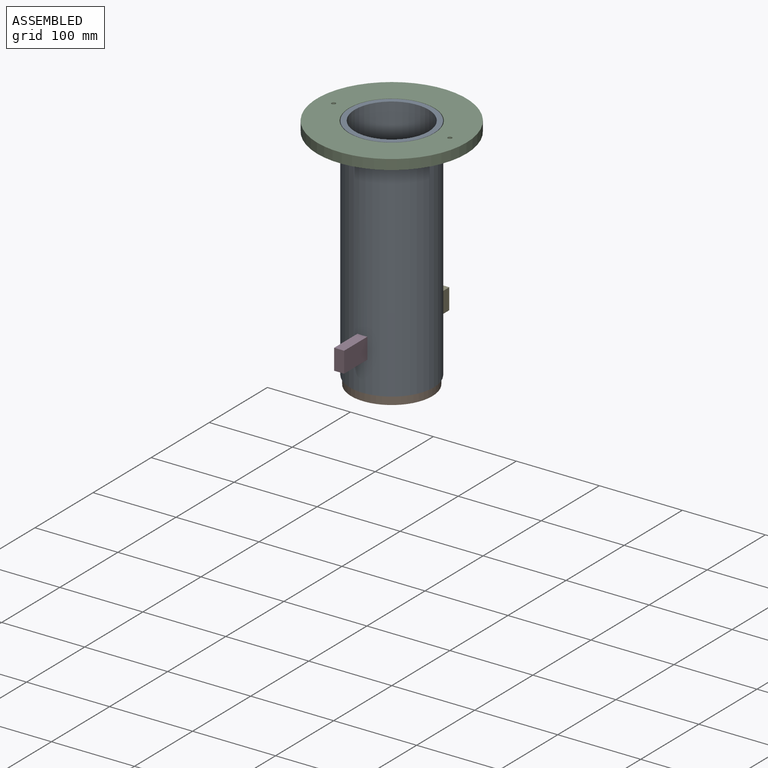
[diagram: assembled view]
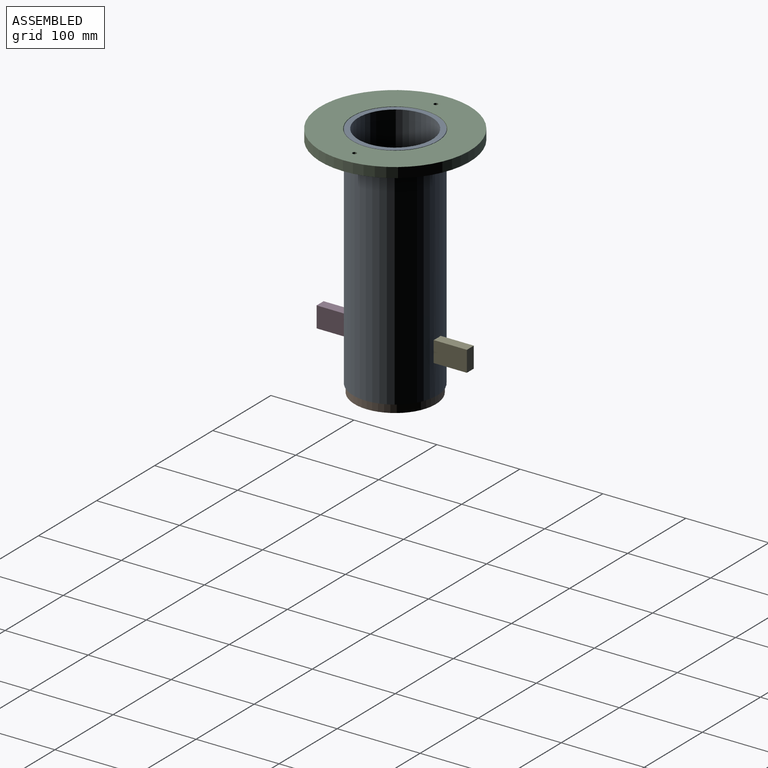
[diagram: assembled view, second angle]
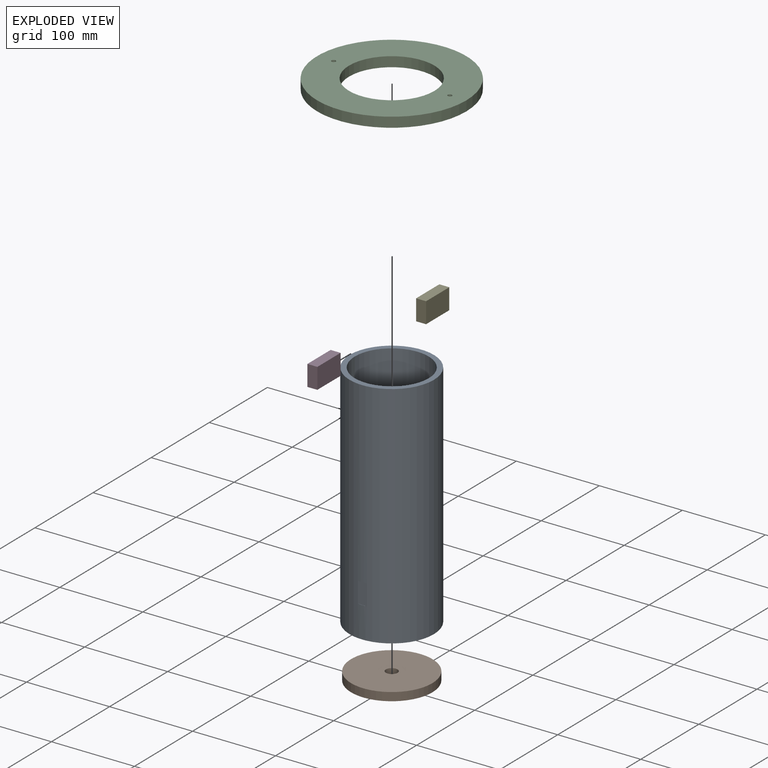
[diagram: exploded view]
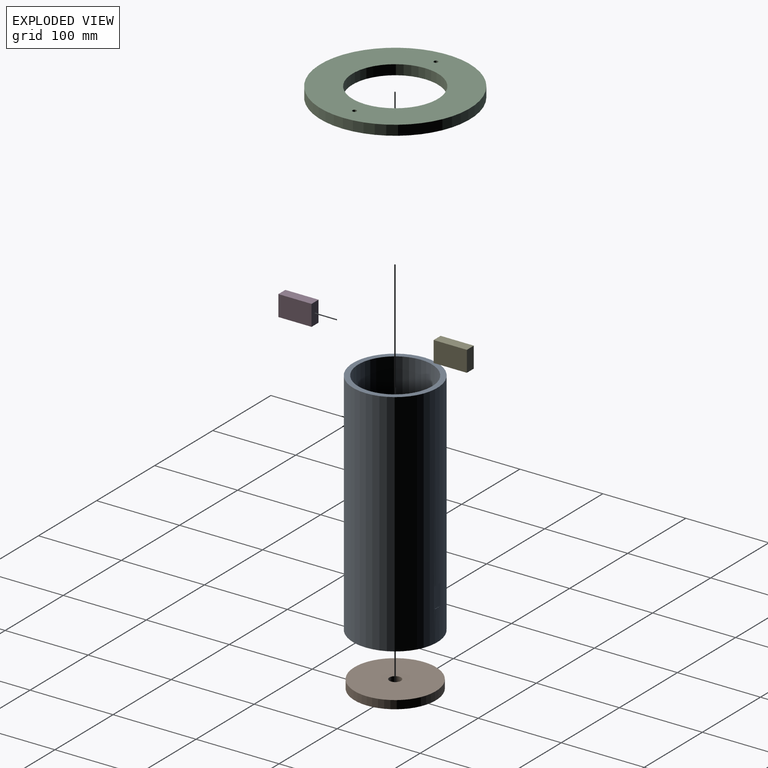
[diagram: exploded view, second angle]
ASSEMBLY  parts=5 mates=4
PART A: 10 faces, bbox 101.6x101.6x277 mm
  f0: cylinder r=50.8mm len=277mm, axis (0,0,-1), area 87862.1mm2, adj f2,f3,f4,f5,f6,f7,f8,f9
  f1: cylinder r=44.5mm len=277mm, axis (0,0,-1), area 77449.7mm2, adj f2,f3
  f2: plane 101.6x101.6mm, normal (0,0,1), area 1886.2mm2, adj f0,f1
  f3: plane 101.6x101.6mm, normal (0,0,-1), area 1886.2mm2, adj f0,f1
  f4: plane 11.03x0.3mm, normal (0,0,1), area 2.2mm2, adj f0,f6
  f5: plane 11.03x0.3mm, normal (0,0,-1), area 2.2mm2, adj f0,f6
  f6: plane 25x11.03mm, normal (0,1,0), area 275.6mm2, adj f0,f4,f5
  f7: plane 11.03x0.3mm, normal (0,0,1), area 2.2mm2, adj f0,f9
  f8: plane 11.03x0.3mm, normal (0,0,-1), area 2.2mm2, adj f0,f9
  f9: plane 25x11.03mm, normal (0,-1,0), area 275.6mm2, adj f0,f7,f8
PART B: 4 faces, bbox 98x98x10 mm
  f0: cylinder r=7mm len=14mm, axis (0,0,-1), area 439.8mm2, adj f2,f3
  f1: cylinder r=49mm len=98mm, axis (0,0,-1), area 3078.8mm2, adj f2,f3
  f2: plane 98x98mm, normal (0,0,1), area 7389mm2, adj f0,f1
  f3: plane 98x98mm, normal (0,0,-1), area 7389mm2, adj f0,f1
PART C: 6 faces, bbox 180x180x12 mm
  f0: cylinder r=51.5mm len=103mm, axis (0,0,-1), area 3883mm2, adj f2,f3
  f1: cylinder r=90mm len=180mm, axis (0,0,-1), area 6785.8mm2, adj f2,f3
  f2: plane 180x180mm, normal (0,0,1), area 17075.3mm2, adj f0,f1,f4,f5
  f3: plane 180x180mm, normal (0,0,-1), area 17075.3mm2, adj f0,f1,f4,f5
  f4: cylinder r=2.5mm len=12mm, axis (0,0,-1), area 188.5mm2, adj f2,f3
  f5: cylinder r=2.5mm len=12mm, axis (0,0,-1), area 188.5mm2, adj f2,f3
PART D: 6 faces, bbox 40x12x25 mm
  f0: plane 40x12mm, normal (0,0,-1), area 480mm2, adj f1,f3,f4,f5
  f1: plane 25x12mm, normal (1,0,0), area 300mm2, adj f0,f2,f4,f5
  f2: plane 40x12mm, normal (0,0,1), area 480mm2, adj f1,f3,f4,f5
  f3: plane 25x12mm, normal (-1,0,0), area 300mm2, adj f0,f2,f4,f5
  f4: plane 40x25mm, normal (0,-1,0), area 1000mm2, adj f0,f1,f2,f3
  f5: plane 40x25mm, normal (0,1,0), area 1000mm2, adj f0,f1,f2,f3
PART E: same geometry as D
PLACE A at identity
PLACE B t=(0,0,-10)mm
PLACE C t=(0,0,265)mm
PLACE D rot(axis=(0.71,0.71,0),180deg) t=(6,-70.5,50)mm
PLACE E rot(axis=(0,0,-1),90deg) t=(6,70.5,50)mm
MATE fastened D.f1 <-> A.f9  axis (0,1,0) through (0,-50.5,50)mm
MATE fastened B.f1 <-> A.f1  axis (0,0,1) through (0,0,0)mm
MATE fastened E.f1 <-> A.f6  axis (0,-1,0) through (0,50.5,50)mm
MATE fastened C.f1 <-> A.f0  axis (0,0,1) through (0,0,277)mm
